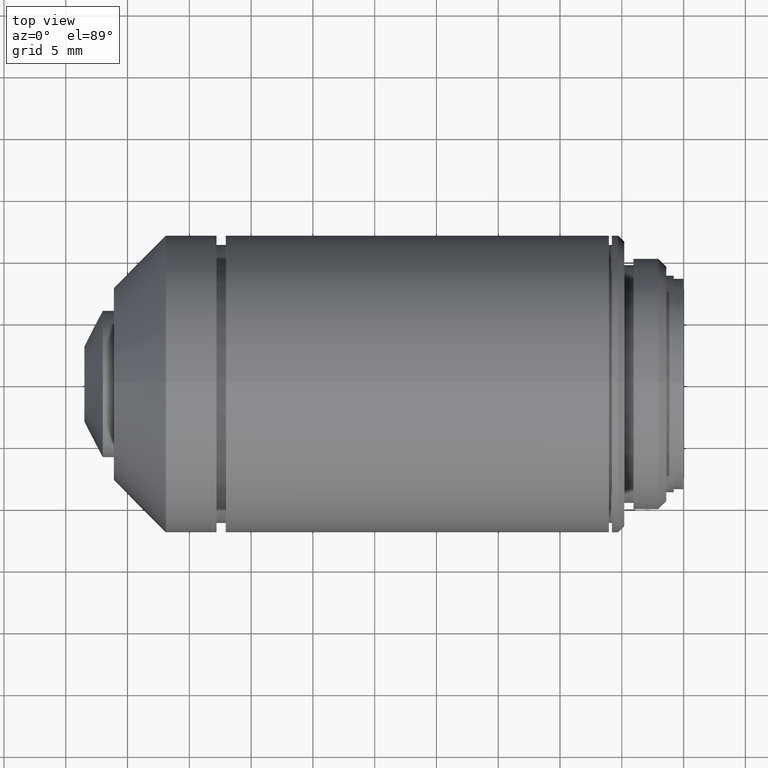
[diagram: clean part render]
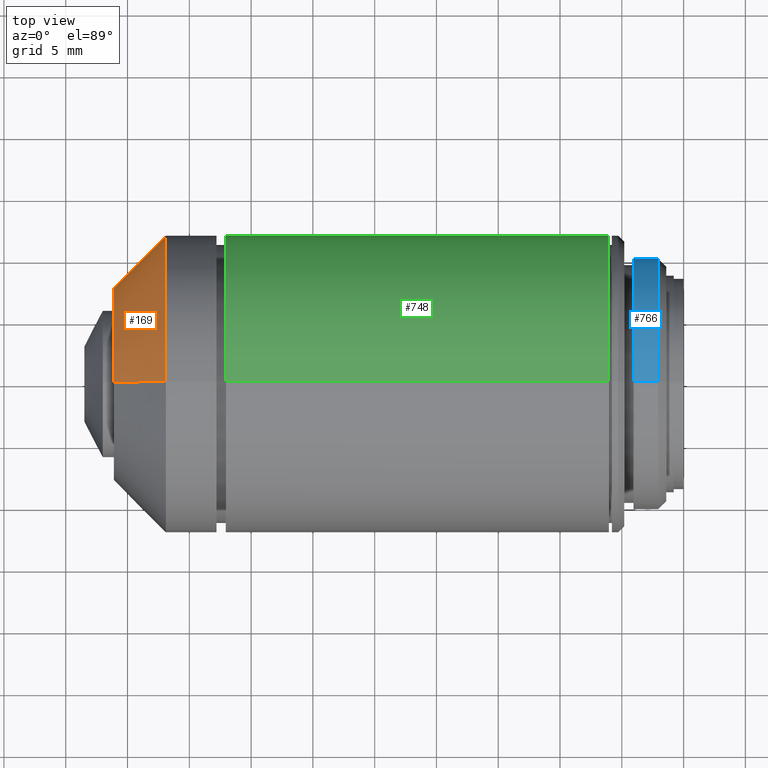
[diagram: same view with three faces highlighted in distinct colors, each labeled with its STEP entity id]
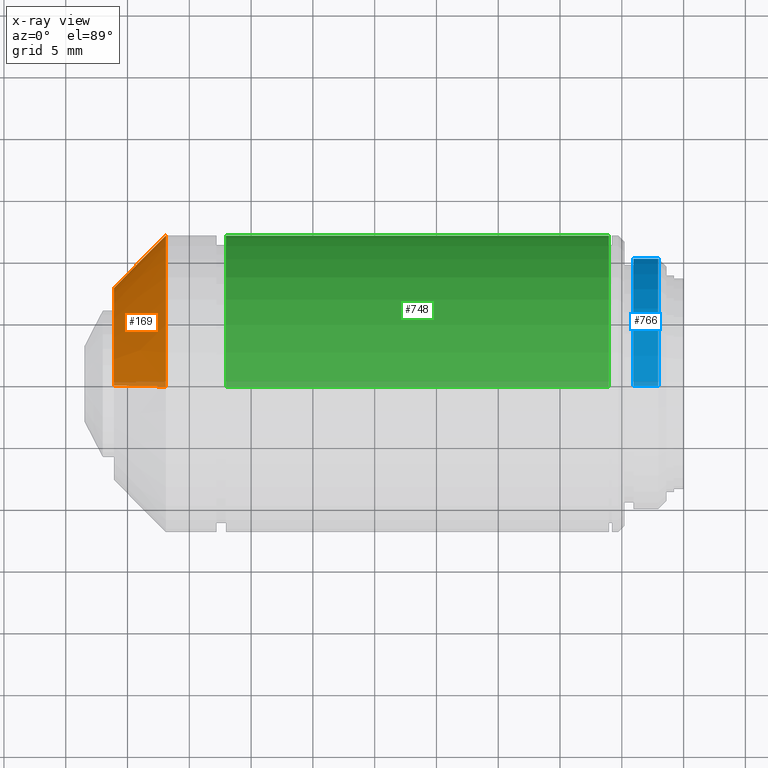
[diagram: x-ray of the same camera — body ghosted, the three highlighted faces saturated]
A machine part, top view with three faces highlighted in distinct colors.
The next image is the same camera in x-ray (body ghosted, the three faces saturated) — at least one of them is partly hidden behind the body in this view.
Their STEP definitions:

[orange] entity #169 — the highlighted conical surface has half-angle 45 deg.
#16 = CIRCLE ( 'NONE', #456, 7.799999999999999822 ) ;
#20 = CARTESIAN_POINT ( 'NONE',  ( -41.89999999999999858, 0.000000000000000000, -12.00000000000000000 ) ) ;
#40 = CARTESIAN_POINT ( 'NONE',  ( -41.89999999999999858, 0.000000000000000000, 0.000000000000000000 ) ) ;
#61 = LINE ( 'NONE', #841, #725 ) ;
#75 = CARTESIAN_POINT ( 'NONE',  ( -46.10000000000000142, 1.212400331155879899E-15, 7.799999999999999822 ) ) ;
#108 = VERTEX_POINT ( 'NONE', #20 ) ;
#120 = CARTESIAN_POINT ( 'NONE',  ( -41.89999999999999858, 0.000000000000000000, -12.00000000000000000 ) ) ;
#123 = DIRECTION ( 'NONE',  ( 0.000000000000000000, 0.000000000000000000, -1.000000000000000000 ) ) ;
#129 = ORIENTED_EDGE ( 'NONE', *, *, #844, .T. ) ;
#143 = DIRECTION ( 'NONE',  ( 0.000000000000000000, 0.000000000000000000, -1.000000000000000000 ) ) ;
#169 = ADVANCED_FACE ( 'NONE', ( #540 ), #362, .T. ) ;
#222 = DIRECTION ( 'NONE',  ( 1.000000000000000000, 0.000000000000000000, 0.000000000000000000 ) ) ;
#252 = DIRECTION ( 'NONE',  ( 1.000000000000000000, 0.000000000000000000, 0.000000000000000000 ) ) ;
#287 = EDGE_CURVE ( 'NONE', #843, #108, #558, .T. ) ;
#362 = CONICAL_SURFACE ( 'NONE', #975, 12.00000000000000000, 0.7853981633974476129 ) ;
#372 = DIRECTION ( 'NONE',  ( 0.7071067811865480168, 0.000000000000000000, -0.7071067811865470176 ) ) ;
#390 = DIRECTION ( 'NONE',  ( 1.000000000000000000, 0.000000000000000000, 0.000000000000000000 ) ) ;
#422 = AXIS2_PLACEMENT_3D ( 'NONE', #1085, #252, #143 ) ;
#439 = VECTOR ( 'NONE', #372, 1000.000000000000000 ) ;
#456 = AXIS2_PLACEMENT_3D ( 'NONE', #880, #390, #123 ) ;
#461 = EDGE_CURVE ( 'NONE', #108, #508, #673, .T. ) ;
#497 = CARTESIAN_POINT ( 'NONE',  ( -46.10000000000000142, 0.000000000000000000, -7.799999999999999822 ) ) ;
#508 = VERTEX_POINT ( 'NONE', #1037 ) ;
#540 = FACE_OUTER_BOUND ( 'NONE', #900, .T. ) ;
#558 = LINE ( 'NONE', #120, #439 ) ;
#581 = ORIENTED_EDGE ( 'NONE', *, *, #287, .F. ) ;
#646 = ORIENTED_EDGE ( 'NONE', *, *, #461, .F. ) ;
#673 = CIRCLE ( 'NONE', #422, 12.00000000000000000 ) ;
#708 = EDGE_CURVE ( 'NONE', #843, #814, #16, .T. ) ;
#725 = VECTOR ( 'NONE', #897, 1000.000000000000000 ) ;
#814 = VERTEX_POINT ( 'NONE', #75 ) ;
#841 = CARTESIAN_POINT ( 'NONE',  ( -41.89999999999999858, 1.469576158976821975E-15, 12.00000000000000000 ) ) ;
#843 = VERTEX_POINT ( 'NONE', #497 ) ;
#844 = EDGE_CURVE ( 'NONE', #814, #508, #61, .T. ) ;
#880 = CARTESIAN_POINT ( 'NONE',  ( -46.10000000000000142, 0.000000000000000000, 0.000000000000000000 ) ) ;
#882 = DIRECTION ( 'NONE',  ( 0.000000000000000000, 0.000000000000000000, -1.000000000000000000 ) ) ;
#897 = DIRECTION ( 'NONE',  ( 0.7071067811865480168, 8.659560562354929160E-17, 0.7071067811865470176 ) ) ;
#900 = EDGE_LOOP ( 'NONE', ( #1089, #129, #646, #581 ) ) ;
#975 = AXIS2_PLACEMENT_3D ( 'NONE', #40, #222, #882 ) ;
#1037 = CARTESIAN_POINT ( 'NONE',  ( -41.89999999999999858, 1.469576158976821975E-15, 12.00000000000000000 ) ) ;
#1085 = CARTESIAN_POINT ( 'NONE',  ( -41.89999999999999858, 0.000000000000000000, 0.000000000000000000 ) ) ;
#1089 = ORIENTED_EDGE ( 'NONE', *, *, #708, .T. ) ;

[blue] entity #766 — the highlighted cylindrical surface (partial cylindrical patch) has radius 10.16 mm, axis along (1, 0, 0).
#55 = VERTEX_POINT ( 'NONE', #1030 ) ;
#118 = EDGE_CURVE ( 'NONE', #639, #55, #572, .T. ) ;
#166 = DIRECTION ( 'NONE',  ( 1.000000000000000000, 0.000000000000000000, 0.000000000000000000 ) ) ;
#210 = CARTESIAN_POINT ( 'NONE',  ( -2.050000000000000266, 0.000000000000000000, 10.16000000000000014 ) ) ;
#238 = ORIENTED_EDGE ( 'NONE', *, *, #1032, .F. ) ;
#249 = CARTESIAN_POINT ( 'NONE',  ( -2.050000000000000266, 0.000000000000000000, 0.000000000000000000 ) ) ;
#352 = DIRECTION ( 'NONE',  ( 1.000000000000000000, 0.000000000000000000, 0.000000000000000000 ) ) ;
#357 = CARTESIAN_POINT ( 'NONE',  ( -4.049999999999999822, 0.000000000000000000, 0.000000000000000000 ) ) ;
#463 = VERTEX_POINT ( 'NONE', #1022 ) ;
#472 = ORIENTED_EDGE ( 'NONE', *, *, #756, .T. ) ;
#518 = VECTOR ( 'NONE', #166, 1000.000000000000000 ) ;
#537 = CIRCLE ( 'NONE', #709, 10.16000000000000014 ) ;
#545 = CARTESIAN_POINT ( 'NONE',  ( -4.049999999999999822, 0.000000000000000000, -10.16000000000000014 ) ) ;
#569 = CYLINDRICAL_SURFACE ( 'NONE', #901, 10.16000000000000014 ) ;
#572 = CIRCLE ( 'NONE', #713, 10.16000000000000014 ) ;
#578 = DIRECTION ( 'NONE',  ( 1.000000000000000000, 0.000000000000000000, 0.000000000000000000 ) ) ;
#639 = VERTEX_POINT ( 'NONE', #545 ) ;
#657 = DIRECTION ( 'NONE',  ( 1.000000000000000000, 0.000000000000000000, 0.000000000000000000 ) ) ;
#669 = VERTEX_POINT ( 'NONE', #210 ) ;
#709 = AXIS2_PLACEMENT_3D ( 'NONE', #249, #657, #1087 ) ;
#713 = AXIS2_PLACEMENT_3D ( 'NONE', #357, #352, #1039 ) ;
#733 = CARTESIAN_POINT ( 'NONE',  ( 29.85526709101650056, 0.000000000000000000, 0.000000000000000000 ) ) ;
#756 = EDGE_CURVE ( 'NONE', #55, #669, #969, .T. ) ;
#766 = ADVANCED_FACE ( 'NONE', ( #815 ), #569, .T. ) ;
#804 = ORIENTED_EDGE ( 'NONE', *, *, #118, .T. ) ;
#815 = FACE_OUTER_BOUND ( 'NONE', #865, .T. ) ;
#865 = EDGE_LOOP ( 'NONE', ( #804, #472, #238, #910 ) ) ;
#885 = CARTESIAN_POINT ( 'NONE',  ( 29.85526709101650056, 1.244241147933709878E-15, 10.16000000000000014 ) ) ;
#888 = EDGE_CURVE ( 'NONE', #639, #463, #922, .T. ) ;
#901 = AXIS2_PLACEMENT_3D ( 'NONE', #733, #916, #994 ) ;
#910 = ORIENTED_EDGE ( 'NONE', *, *, #888, .F. ) ;
#911 = CARTESIAN_POINT ( 'NONE',  ( 29.85526709101650056, 0.000000000000000000, -10.16000000000000014 ) ) ;
#916 = DIRECTION ( 'NONE',  ( 1.000000000000000000, 0.000000000000000000, 0.000000000000000000 ) ) ;
#922 = LINE ( 'NONE', #911, #518 ) ;
#957 = VECTOR ( 'NONE', #578, 1000.000000000000000 ) ;
#969 = LINE ( 'NONE', #885, #957 ) ;
#994 = DIRECTION ( 'NONE',  ( 0.000000000000000000, 0.000000000000000000, -1.000000000000000000 ) ) ;
#1022 = CARTESIAN_POINT ( 'NONE',  ( -2.050000000000000266, 1.244241147933709878E-15, -10.16000000000000014 ) ) ;
#1030 = CARTESIAN_POINT ( 'NONE',  ( -4.049999999999999822, 1.244241147933709878E-15, 10.16000000000000014 ) ) ;
#1032 = EDGE_CURVE ( 'NONE', #463, #669, #537, .T. ) ;
#1039 = DIRECTION ( 'NONE',  ( 0.000000000000000000, 0.000000000000000000, -1.000000000000000000 ) ) ;
#1087 = DIRECTION ( 'NONE',  ( 0.000000000000000000, 0.000000000000000000, -1.000000000000000000 ) ) ;

[green] entity #748 — the highlighted cylindrical surface (partial cylindrical patch) has radius 12 mm, axis along (1, 0, 0).
#11 = DIRECTION ( 'NONE',  ( 1.000000000000000000, 0.000000000000000000, 0.000000000000000000 ) ) ;
#36 = EDGE_CURVE ( 'NONE', #728, #763, #770, .T. ) ;
#39 = CARTESIAN_POINT ( 'NONE',  ( 29.85526709101650056, 0.000000000000000000, 0.000000000000000000 ) ) ;
#158 = CARTESIAN_POINT ( 'NONE',  ( -37.04999999999999716, 1.469576158976823947E-15, 12.00000000000000000 ) ) ;
#159 = DIRECTION ( 'NONE',  ( 1.000000000000000000, 0.000000000000000000, 0.000000000000000000 ) ) ;
#167 = CARTESIAN_POINT ( 'NONE',  ( -6.049999999999999822, 0.000000000000000000, 0.000000000000000000 ) ) ;
#180 = LINE ( 'NONE', #520, #567 ) ;
#184 = CARTESIAN_POINT ( 'NONE',  ( 29.85526709101650056, 1.469576158976821975E-15, 12.00000000000000000 ) ) ;
#196 = CARTESIAN_POINT ( 'NONE',  ( -37.04999999999999716, 0.000000000000000000, -12.00000000000000000 ) ) ;
#214 = CARTESIAN_POINT ( 'NONE',  ( -6.049999999999999822, 0.000000000000000000, -12.00000000000000000 ) ) ;
#219 = VERTEX_POINT ( 'NONE', #214 ) ;
#250 = EDGE_LOOP ( 'NONE', ( #327, #978, #835, #399 ) ) ;
#258 = DIRECTION ( 'NONE',  ( 1.000000000000000000, 0.000000000000000000, 0.000000000000000000 ) ) ;
#275 = VERTEX_POINT ( 'NONE', #644 ) ;
#284 = CYLINDRICAL_SURFACE ( 'NONE', #315, 12.00000000000000000 ) ;
#297 = DIRECTION ( 'NONE',  ( 1.000000000000000000, 0.000000000000000000, 0.000000000000000000 ) ) ;
#315 = AXIS2_PLACEMENT_3D ( 'NONE', #39, #297, #378 ) ;
#327 = ORIENTED_EDGE ( 'NONE', *, *, #36, .T. ) ;
#378 = DIRECTION ( 'NONE',  ( 0.000000000000000000, 0.000000000000000000, -1.000000000000000000 ) ) ;
#399 = ORIENTED_EDGE ( 'NONE', *, *, #951, .F. ) ;
#441 = DIRECTION ( 'NONE',  ( 1.000000000000000000, 0.000000000000000000, 0.000000000000000000 ) ) ;
#443 = EDGE_CURVE ( 'NONE', #219, #275, #689, .T. ) ;
#450 = FACE_OUTER_BOUND ( 'NONE', #250, .T. ) ;
#500 = DIRECTION ( 'NONE',  ( 0.000000000000000000, 0.000000000000000000, -1.000000000000000000 ) ) ;
#511 = LINE ( 'NONE', #184, #972 ) ;
#520 = CARTESIAN_POINT ( 'NONE',  ( 29.85526709101650056, 0.000000000000000000, -12.00000000000000000 ) ) ;
#521 = AXIS2_PLACEMENT_3D ( 'NONE', #989, #441, #873 ) ;
#567 = VECTOR ( 'NONE', #258, 1000.000000000000000 ) ;
#644 = CARTESIAN_POINT ( 'NONE',  ( -6.049999999999999822, 1.469576158976821975E-15, 12.00000000000000000 ) ) ;
#689 = CIRCLE ( 'NONE', #986, 12.00000000000000000 ) ;
#728 = VERTEX_POINT ( 'NONE', #196 ) ;
#748 = ADVANCED_FACE ( 'NONE', ( #450 ), #284, .T. ) ;
#763 = VERTEX_POINT ( 'NONE', #158 ) ;
#770 = CIRCLE ( 'NONE', #521, 12.00000000000000000 ) ;
#835 = ORIENTED_EDGE ( 'NONE', *, *, #443, .F. ) ;
#873 = DIRECTION ( 'NONE',  ( 0.000000000000000000, 0.000000000000000000, -1.000000000000000000 ) ) ;
#951 = EDGE_CURVE ( 'NONE', #728, #219, #180, .T. ) ;
#972 = VECTOR ( 'NONE', #11, 1000.000000000000000 ) ;
#978 = ORIENTED_EDGE ( 'NONE', *, *, #991, .T. ) ;
#986 = AXIS2_PLACEMENT_3D ( 'NONE', #167, #159, #500 ) ;
#989 = CARTESIAN_POINT ( 'NONE',  ( -37.04999999999999716, 0.000000000000000000, 0.000000000000000000 ) ) ;
#991 = EDGE_CURVE ( 'NONE', #763, #275, #511, .T. ) ;